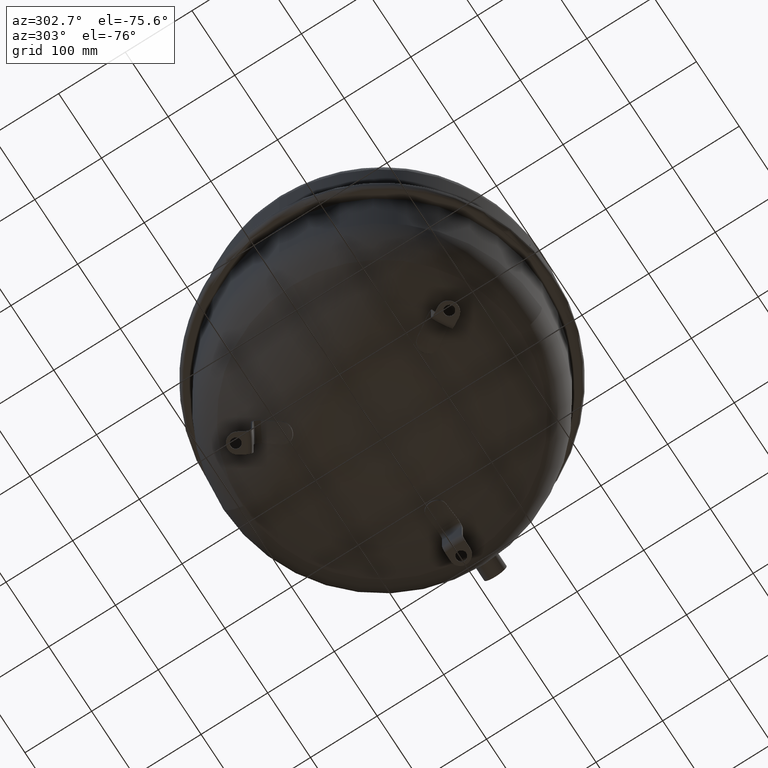
[diagram: clean part render]
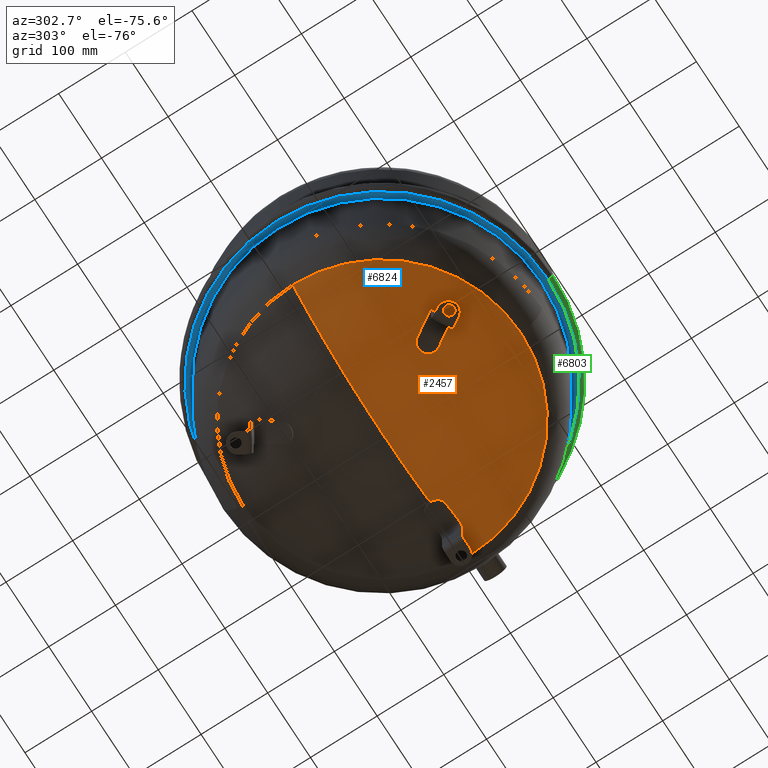
[diagram: same view with three faces highlighted in distinct colors, each labeled with its STEP entity id]
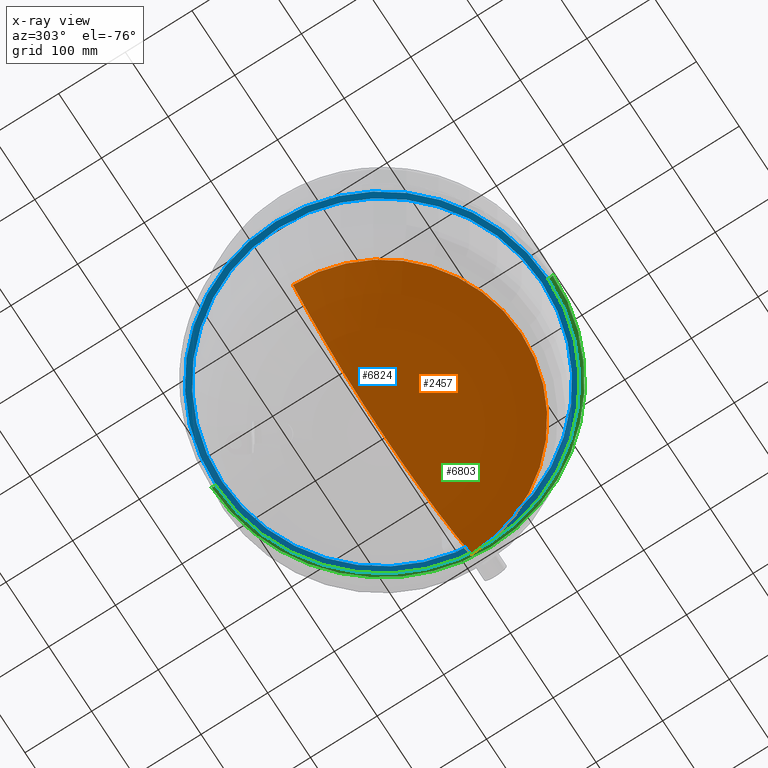
[diagram: x-ray of the same camera — body ghosted, the three highlighted faces saturated]
A machine part, auxiliary view with three faces highlighted in distinct colors.
The next image is the same camera in x-ray (body ghosted, the three faces saturated) — at least one of them is partly hidden behind the body in this view.
Their STEP definitions:

[orange] entity #2457 — the highlighted spherical surface has radius 354 mm.
#2379=CARTESIAN_POINT('',(0.0,-208.57297297297296,86.969730718555795));
#2380=VERTEX_POINT('',#2379);
#2405=CARTESIAN_POINT('',(-208.57297297297296,-1.248584E-014,86.969730718555837));
#2406=VERTEX_POINT('',#2405);
#2414=CARTESIAN_POINT('',(0.0,-1.248584E-014,86.969730718555837));
#2415=DIRECTION('',(0.0,0.0,1.0));
#2416=DIRECTION('',(-1.0,0.0,0.0));
#2417=AXIS2_PLACEMENT_3D('',#2414,#2415,#2416);
#2418=CIRCLE('',#2417,208.57297297297296);
#2419=EDGE_CURVE('',#2406,#2380,#2418,.T.);
#2424=CARTESIAN_POINT('',(0.0,-6.502875E-014,373.0));
#2425=DIRECTION('',(0.0,0.0,1.0));
#2426=DIRECTION('',(1.0,0.0,0.0));
#2427=AXIS2_PLACEMENT_3D('',#2424,#2425,#2426);
#2428=SPHERICAL_SURFACE('',#2427,354.0);
#2429=CARTESIAN_POINT('',(208.57297297297296,-6.502875E-014,86.969730718555866));
#2430=VERTEX_POINT('',#2429);
#2431=CARTESIAN_POINT('',(-2.167553E-014,-6.502875E-014,19.0));
#2432=VERTEX_POINT('',#2431);
#2433=CARTESIAN_POINT('',(0.0,-6.502875E-014,373.0));
#2434=DIRECTION('',(0.0,1.0,0.0));
#2435=DIRECTION('',(1.0,0.0,0.0));
#2436=AXIS2_PLACEMENT_3D('',#2433,#2434,#2435);
#2437=CIRCLE('',#2436,354.0);
#2438=EDGE_CURVE('',#2430,#2432,#2437,.T.);
#2439=ORIENTED_EDGE('',*,*,#2438,.F.);
#2440=CARTESIAN_POINT('',(0.0,-1.248584E-014,86.969730718555837));
#2441=DIRECTION('',(0.0,0.0,1.0));
#2442=DIRECTION('',(-1.0,0.0,0.0));
#2443=AXIS2_PLACEMENT_3D('',#2440,#2441,#2442);
#2444=CIRCLE('',#2443,208.57297297297296);
#2445=EDGE_CURVE('',#2380,#2430,#2444,.T.);
#2446=ORIENTED_EDGE('',*,*,#2445,.F.);
#2447=ORIENTED_EDGE('',*,*,#2419,.F.);
#2448=CARTESIAN_POINT('',(0.0,-6.502875E-014,373.0));
#2449=DIRECTION('',(0.0,-1.0,0.0));
#2450=DIRECTION('',(-1.0,0.0,0.0));
#2451=AXIS2_PLACEMENT_3D('',#2448,#2449,#2450);
#2452=CIRCLE('',#2451,354.0);
#2453=EDGE_CURVE('',#2406,#2432,#2452,.T.);
#2454=ORIENTED_EDGE('',*,*,#2453,.T.);
#2455=EDGE_LOOP('',(#2439,#2446,#2447,#2454));
#2456=FACE_OUTER_BOUND('',#2455,.T.);
#2457=ADVANCED_FACE('',(#2456),#2428,.T.);

[blue] entity #6824 — the highlighted planar face has unit normal (0, 0, -1).
#6518=CARTESIAN_POINT('',(-240.0,6.582477E-016,275.75));
#6519=VERTEX_POINT('',#6518);
#6528=CARTESIAN_POINT('',(240.0,-2.873230E-014,275.75));
#6529=VERTEX_POINT('',#6528);
#6530=CARTESIAN_POINT('',(0.0,6.582477E-016,275.75));
#6531=DIRECTION('',(0.0,0.0,-1.0));
#6532=DIRECTION('',(-1.0,0.0,0.0));
#6533=AXIS2_PLACEMENT_3D('',#6530,#6531,#6532);
#6534=CIRCLE('',#6533,240.0);
#6535=EDGE_CURVE('',#6519,#6529,#6534,.T.);
#6560=CARTESIAN_POINT('',(0.0,249.00000000000006,275.75));
#6561=VERTEX_POINT('',#6560);
#6571=CARTESIAN_POINT('',(-249.00000000000006,6.582477E-016,275.75));
#6572=VERTEX_POINT('',#6571);
#6573=CARTESIAN_POINT('',(0.0,6.582477E-016,275.75));
#6574=DIRECTION('',(0.0,0.0,-1.0));
#6575=DIRECTION('',(-1.0,0.0,0.0));
#6576=AXIS2_PLACEMENT_3D('',#6573,#6574,#6575);
#6577=CIRCLE('',#6576,249.00000000000006);
#6578=EDGE_CURVE('',#6572,#6561,#6577,.T.);
#6580=CARTESIAN_POINT('',(-3.049270E-014,-249.00000000000006,275.75));
#6581=VERTEX_POINT('',#6580);
#6582=CARTESIAN_POINT('',(0.0,6.582477E-016,275.75));
#6583=DIRECTION('',(0.0,0.0,-1.0));
#6584=DIRECTION('',(-1.0,0.0,0.0));
#6585=AXIS2_PLACEMENT_3D('',#6582,#6583,#6584);
#6586=CIRCLE('',#6585,249.00000000000006);
#6587=EDGE_CURVE('',#6581,#6572,#6586,.T.);
#6794=CARTESIAN_POINT('',(0.0,6.582477E-016,275.75));
#6795=DIRECTION('',(0.0,0.0,-1.0));
#6796=DIRECTION('',(-1.0,0.0,0.0));
#6797=AXIS2_PLACEMENT_3D('',#6794,#6795,#6796);
#6798=CIRCLE('',#6797,249.00000000000006);
#6799=EDGE_CURVE('',#6561,#6581,#6798,.T.);
#6804=CARTESIAN_POINT('',(-244.50000000000003,6.582477E-016,275.75));
#6805=DIRECTION('',(0.0,0.0,-1.0));
#6806=DIRECTION('',(0.0,1.0,0.0));
#6807=AXIS2_PLACEMENT_3D('',#6804,#6805,#6806);
#6808=PLANE('',#6807);
#6809=ORIENTED_EDGE('',*,*,#6578,.T.);
#6810=ORIENTED_EDGE('',*,*,#6799,.T.);
#6811=ORIENTED_EDGE('',*,*,#6587,.T.);
#6812=EDGE_LOOP('',(#6809,#6810,#6811));
#6813=FACE_OUTER_BOUND('',#6812,.T.);
#6814=ORIENTED_EDGE('',*,*,#6535,.F.);
#6815=CARTESIAN_POINT('',(0.0,6.582477E-016,275.75));
#6816=DIRECTION('',(0.0,0.0,-1.0));
#6817=DIRECTION('',(-1.0,0.0,0.0));
#6818=AXIS2_PLACEMENT_3D('',#6815,#6816,#6817);
#6819=CIRCLE('',#6818,240.0);
#6820=EDGE_CURVE('',#6529,#6519,#6819,.T.);
#6821=ORIENTED_EDGE('',*,*,#6820,.F.);
#6822=EDGE_LOOP('',(#6814,#6821));
#6823=FACE_BOUND('',#6822,.T.);
#6824=ADVANCED_FACE('',(#6813,#6823),#6808,.T.);

[green] entity #6803 — the highlighted toroidal blend (fillet) surface has major radius 249 mm and minor (blend) radius 7 mm.
#6560=CARTESIAN_POINT('',(0.0,249.00000000000006,275.75));
#6561=VERTEX_POINT('',#6560);
#6562=CARTESIAN_POINT('',(0.0,256.0,282.75));
#6563=VERTEX_POINT('',#6562);
#6564=CARTESIAN_POINT('',(0.0,249.00000000000006,282.75));
#6565=DIRECTION('',(1.0,0.0,0.0));
#6566=DIRECTION('',(0.0,1.0,0.0));
#6567=AXIS2_PLACEMENT_3D('',#6564,#6565,#6566);
#6568=CIRCLE('',#6567,7.000000000000001);
#6569=EDGE_CURVE('',#6561,#6563,#6568,.T.);
#6580=CARTESIAN_POINT('',(-3.049270E-014,-249.00000000000006,275.75));
#6581=VERTEX_POINT('',#6580);
#6589=CARTESIAN_POINT('',(-3.134992E-014,-256.0,282.75));
#6590=VERTEX_POINT('',#6589);
#6591=CARTESIAN_POINT('',(-3.049270E-014,-249.00000000000006,282.75));
#6592=DIRECTION('',(-1.0,0.0,0.0));
#6593=DIRECTION('',(0.0,-1.0,0.0));
#6594=AXIS2_PLACEMENT_3D('',#6591,#6592,#6593);
#6595=CIRCLE('',#6594,7.000000000000001);
#6596=EDGE_CURVE('',#6581,#6590,#6595,.T.);
#6631=CARTESIAN_POINT('',(256.0,-3.112030E-014,282.75));
#6632=VERTEX_POINT('',#6631);
#6633=CARTESIAN_POINT('',(0.0,2.296213E-016,282.75));
#6634=DIRECTION('',(0.0,0.0,-1.0));
#6635=DIRECTION('',(-1.0,0.0,0.0));
#6636=AXIS2_PLACEMENT_3D('',#6633,#6634,#6635);
#6637=CIRCLE('',#6636,256.0);
#6638=EDGE_CURVE('',#6632,#6590,#6637,.T.);
#6774=CARTESIAN_POINT('',(0.0,2.296213E-016,282.75));
#6775=DIRECTION('',(0.0,0.0,-1.0));
#6776=DIRECTION('',(-1.0,0.0,0.0));
#6777=AXIS2_PLACEMENT_3D('',#6774,#6775,#6776);
#6778=CIRCLE('',#6777,256.0);
#6779=EDGE_CURVE('',#6563,#6632,#6778,.T.);
#6785=CARTESIAN_POINT('',(0.0,2.296213E-016,282.75));
#6786=DIRECTION('',(0.0,6.123234E-017,-1.0));
#6787=DIRECTION('',(0.0,1.0,0.0));
#6788=AXIS2_PLACEMENT_3D('',#6785,#6786,#6787);
#6789=TOROIDAL_SURFACE('',#6788,249.00000000000006,7.000000000000001);
#6790=ORIENTED_EDGE('',*,*,#6569,.T.);
#6791=ORIENTED_EDGE('',*,*,#6779,.T.);
#6792=ORIENTED_EDGE('',*,*,#6638,.T.);
#6793=ORIENTED_EDGE('',*,*,#6596,.F.);
#6794=CARTESIAN_POINT('',(0.0,6.582477E-016,275.75));
#6795=DIRECTION('',(0.0,0.0,-1.0));
#6796=DIRECTION('',(-1.0,0.0,0.0));
#6797=AXIS2_PLACEMENT_3D('',#6794,#6795,#6796);
#6798=CIRCLE('',#6797,249.00000000000006);
#6799=EDGE_CURVE('',#6561,#6581,#6798,.T.);
#6800=ORIENTED_EDGE('',*,*,#6799,.F.);
#6801=EDGE_LOOP('',(#6790,#6791,#6792,#6793,#6800));
#6802=FACE_OUTER_BOUND('',#6801,.T.);
#6803=ADVANCED_FACE('',(#6802),#6789,.T.);